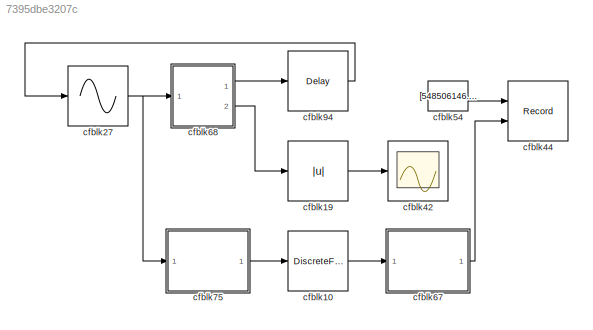
MODEL slx_7395dbe3207c
KIND model
CONFIG AbsTol = auto
CONFIG EnableMultiTasking = off
CONFIG FixedStep = auto
CONFIG MaxStep = auto
CONFIG MinStep = auto
CONFIG RelTol = 1e-3
CONFIG SampleTimeConstraint = Unconstrained
CONFIG SolverName = VariableStepAuto
CONFIG StartTime = 0.0
CONFIG StopTime = 10.0
BLOCK [DiscreteFir] cfblk10
  InputPortMap = u0
  OutputPortMap = o0
  Ports = [1, 1]
  SampleTime = 1
BLOCK [Abs] cfblk19
  SaturateOnIntegerOverflow = off
BLOCK [Sin] cfblk27
  Ports = [1, 1]
  SampleTime = 0
  TimeSource = Use external signal
BLOCK [Scope] cfblk42
  Floating = off
  NumInputPorts = 1
  Ports = [1]
  ScopeSpecificationString = Simulink.scopes.TimeScopeBlockCfg('CurrentConfiguration', extmgr.ConfigurationSet(extmgr.Configuration('Core','General UI',true),extmgr.Configuration('Core','Source UI',true),extmgr.Configuration('Sources','WiredSimulink',true),extmgr.Configuration('Visuals','Time Domain',true),extmgr.Configuration('Tools','Plot Navigation',true),extmgr.Configuration('Tools','Measurements',true)),'Version','2021b'...<+1ch>
BLOCK [Record] cfblk44
  CompatibilityTag = XY
  FileSettingsInternal = {"entries":[{"content":{"excelSettings":{"content":{},"type":"Streamout.ExcelSettings"}},"type":"Streamout.FileSettingStorage","uuid":"51942df6-16a4-4685-b70d-2ae4707f6288"}],"packageUris":["http://schema.mathworks.com/mf0/streamout_blocks/R2020a"],"version":"1.0"}
  Layout = [1 1]
  Ports = [2]
  SignalsInternal = {"entries":[{"content":{"signals":[{"content":{"blockPath":["sampleModel291original/cfblk44"],"channel":[],"dimensions":[1],"domain":"sampleModel291original/cfblk44","lineColor":"#d95319","plots":[],"port":1,"sid":[],"signalID":107777,"signalName":"cfblk54"},"type":"RecordBlkView.Signal","uuid":"0372f152-a334-46d1-ac6f-9eb17b93906c"},{"content":{"blockPath":["sampleModel291original/cfblk44"],"chan...<+413ch>
  VisualizationBindings = {"xyplotplugin":{"info":[{"series":[],"subplotID":1}]}}
BLOCK [Constant] cfblk54
  SampleTime = 1
  Value = [548506146.640336]
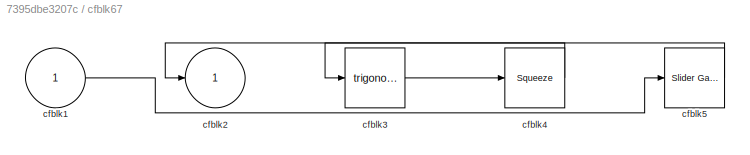
BLOCK [SubSystem] cfblk67
  Ports = [1, 1]
  RequestExecContextInheritance = off
BLOCK [Inport] cfblk67/cfblk1
BLOCK [Outport] cfblk67/cfblk2
BLOCK [Trigonometry] cfblk67/cfblk3
  Ports = [1, 1]
BLOCK [Squeeze] cfblk67/cfblk4
BLOCK [Reference] cfblk67/cfblk5  REF=simulink/Math
Operations/Slider
Gain
  Ports = [1, 1]
  SourceBlock = simulink/Math\nOperations/Slider\nGain
  SourceProductBaseCode = SL
  SourceType = Slider Gain
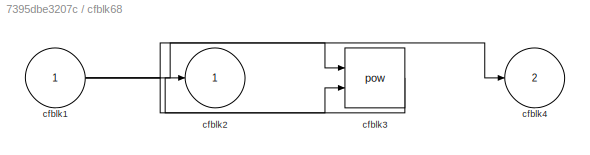
BLOCK [SubSystem] cfblk68
  Ports = [1, 2]
  RequestExecContextInheritance = off
BLOCK [Inport] cfblk68/cfblk1
BLOCK [Outport] cfblk68/cfblk2
BLOCK [Math] cfblk68/cfblk3
  Operator = pow
  Ports = [2, 1]
BLOCK [Outport] cfblk68/cfblk4
  Port = 2
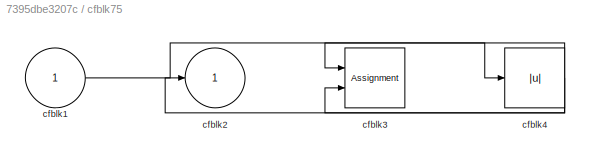
BLOCK [SubSystem] cfblk75
  Ports = [1, 1]
  RequestExecContextInheritance = off
BLOCK [Inport] cfblk75/cfblk1
BLOCK [Outport] cfblk75/cfblk2
BLOCK [Assignment] cfblk75/cfblk3
  DiagnosticForDimensions = Warning
  IndexOptions = Index vector (dialog)
  Indices = 1
  OutputSizes = 1
  Ports = [2, 1]
BLOCK [Abs] cfblk75/cfblk4
  SaturateOnIntegerOverflow = off
BLOCK [Delay] cfblk94
  InputPortMap = u0
  Ports = [1, 1]
  SampleTime = 1
LINE cfblk10:1 -> cfblk67:1
LINE cfblk19:1 -> cfblk42:1
NET cfblk27:1 -> cfblk68:1, cfblk75:1
LINE cfblk54:1 -> cfblk44:1
LINE cfblk67/cfblk1:1 -> cfblk67/cfblk5:1
LINE cfblk67/cfblk3:1 -> cfblk67/cfblk4:1
LINE cfblk67/cfblk4:1 -> cfblk67/cfblk2:1
LINE cfblk67/cfblk5:1 -> cfblk67/cfblk3:1
LINE cfblk67:1 -> cfblk44:2
NET cfblk68/cfblk1:1 -> cfblk68/cfblk3:1, cfblk68/cfblk3:2, cfblk68/cfblk4:1
LINE cfblk68/cfblk3:1 -> cfblk68/cfblk2:1
LINE cfblk68:1 -> cfblk94:1
LINE cfblk68:2 -> cfblk19:1
LINE cfblk75/cfblk1:1 -> cfblk75/cfblk4:1
NET cfblk75/cfblk4:1 -> cfblk75/cfblk2:1, cfblk75/cfblk3:1, cfblk75/cfblk3:2
LINE cfblk75:1 -> cfblk10:1
LINE cfblk94:1 -> cfblk27:1
note: NET lines group one-source signal fan-out (src -> all destinations, sorted); 1:1 wires keep LINE
